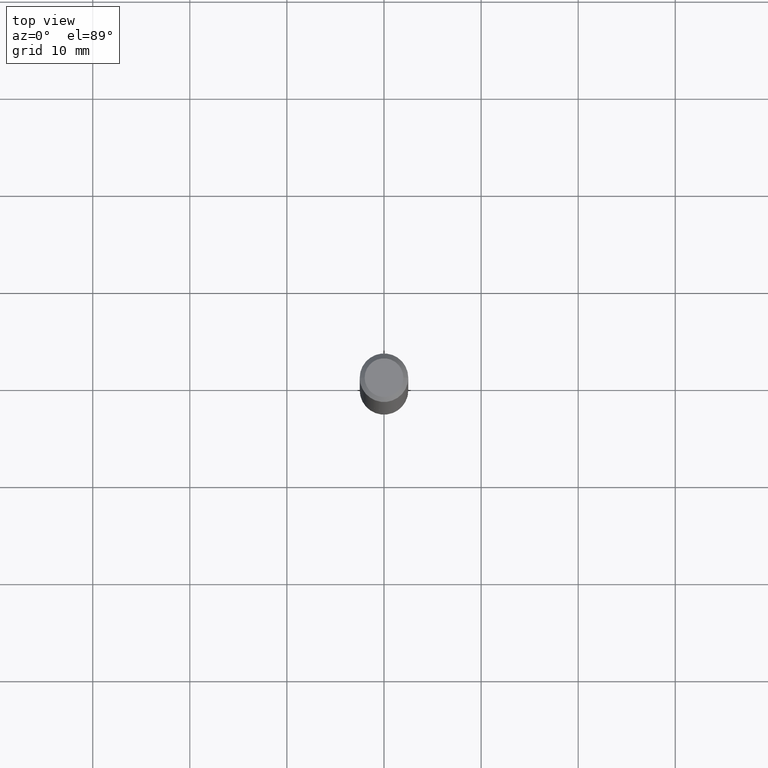
[diagram: clean part render]
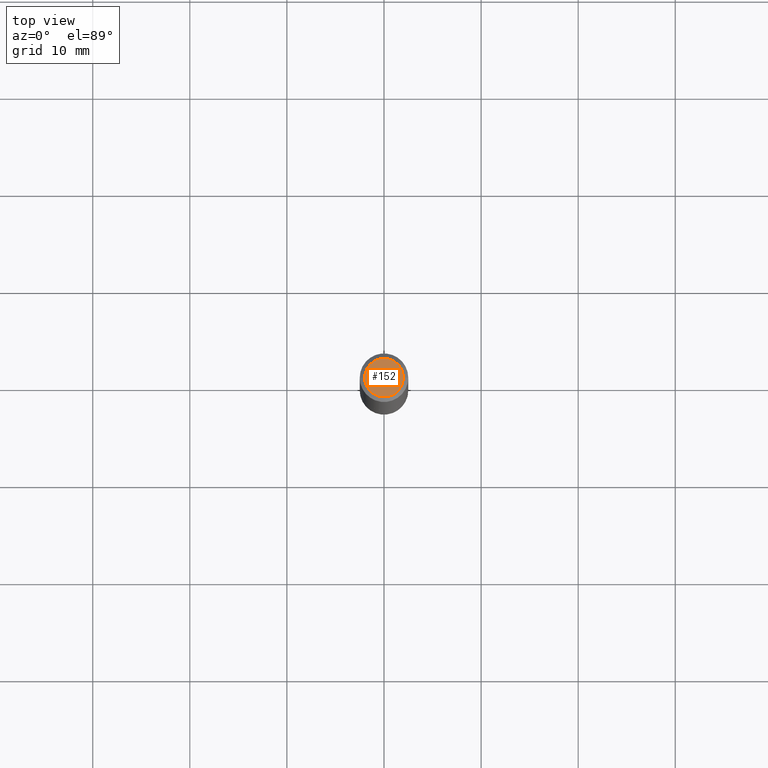
[diagram: same view with one face highlighted and labeled with its STEP entity id]
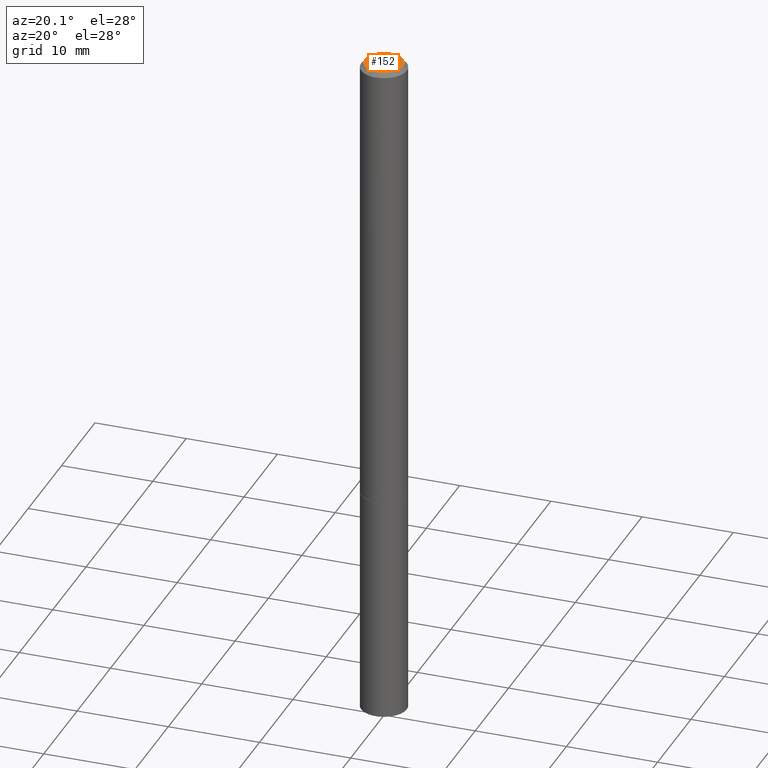
[diagram: same view with one face highlighted and labeled with its STEP entity id]
A machine part, top view. The second image highlights one B-rep face of the part: STEP entity #152.
A second angle (auxiliary view) of the same face is appended — the face is thin or edge-on in the first view.
In plain terms, the highlighted planar face has unit normal (0, -0, -1).
Its self-contained STEP definition (entity closure, byte-faithful):
#4 = CARTESIAN_POINT ( 'NONE',  ( 0.07844999999999976992, -6.417258612913216511E-16, -4.268512490096252041E-18 ) ) ;
#17 = PLANE ( 'NONE',  #349 ) ;
#48 = DIRECTION ( 'NONE',  ( 1.000000000000000000, -6.982962677686265922E-15, 4.876126812019107680E-29 ) ) ;
#76 = AXIS2_PLACEMENT_3D ( 'NONE', #162, #186, #137 ) ;
#130 = DIRECTION ( 'NONE',  ( 2.438088387897960049E-29, -3.491481338843145188E-15, -1.000000000000000000 ) ) ;
#131 = DIRECTION ( 'NONE',  ( -1.000000000000000000, 6.982962677686265922E-15, -4.876176775795935793E-29 ) ) ;
#137 = DIRECTION ( 'NONE',  ( 1.000000000000000000, -6.982962677686265922E-15, 4.876126812019107680E-29 ) ) ;
#138 = VERTEX_POINT ( 'NONE', #303 ) ;
#152 = ADVANCED_FACE ( 'NONE', ( #271 ), #17, .F. ) ;
#157 = AXIS2_PLACEMENT_3D ( 'NONE', #298, #244, #48 ) ;
#162 = CARTESIAN_POINT ( 'NONE',  ( 1.043851414335219820E-46, -1.490343170380447200E-32, -4.268512490100411279E-18 ) ) ;
#165 = CIRCLE ( 'NONE', #76, 0.07844999999999976992 ) ;
#186 = DIRECTION ( 'NONE',  ( -2.445468806185136597E-29, 3.491481338843145583E-15, 1.000000000000000000 ) ) ;
#197 = EDGE_LOOP ( 'NONE', ( #243, #249 ) ) ;
#243 = ORIENTED_EDGE ( 'NONE', *, *, #320, .T. ) ;
#244 = DIRECTION ( 'NONE',  ( -2.445468806185136597E-29, 3.491481338843145583E-15, 1.000000000000000000 ) ) ;
#249 = ORIENTED_EDGE ( 'NONE', *, *, #256, .T. ) ;
#256 = EDGE_CURVE ( 'NONE', #359, #138, #293, .T. ) ;
#268 = CARTESIAN_POINT ( 'NONE',  ( 5.478134220644859637E-16, 0.07844999999999976992, -2.760409672772941320E-16 ) ) ;
#271 = FACE_OUTER_BOUND ( 'NONE', #197, .T. ) ;
#293 = CIRCLE ( 'NONE', #157, 0.07844999999999976992 ) ;
#298 = CARTESIAN_POINT ( 'NONE',  ( 1.043851414335219820E-46, -1.490343170380447200E-32, -4.268512490100411279E-18 ) ) ;
#303 = CARTESIAN_POINT ( 'NONE',  ( -0.07844999999999976992, 5.827282354529171197E-16, -4.268512490104364828E-18 ) ) ;
#320 = EDGE_CURVE ( 'NONE', #138, #359, #165, .T. ) ;
#349 = AXIS2_PLACEMENT_3D ( 'NONE', #268, #130, #131 ) ;
#359 = VERTEX_POINT ( 'NONE', #4 ) ;